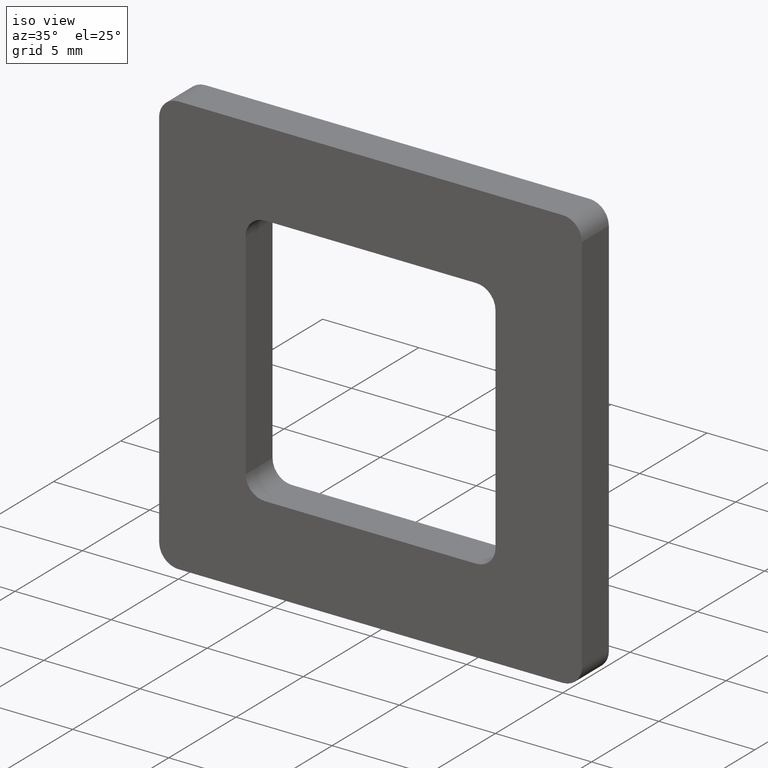
[diagram: clean part render]
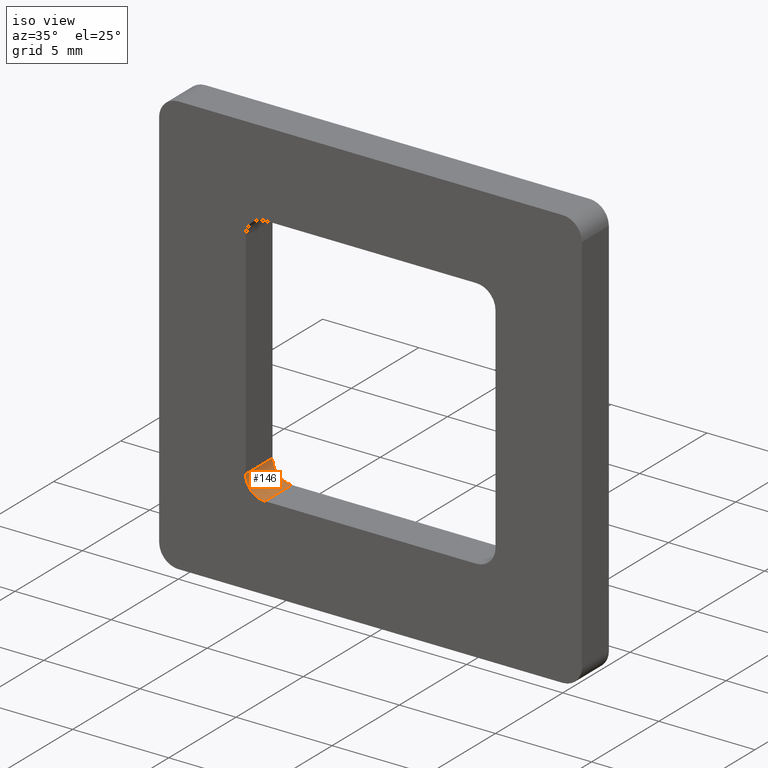
[diagram: same view with one face highlighted and labeled with its STEP entity id]
A machine part, iso view. The second image highlights one B-rep face of the part: STEP entity #146.
In plain terms, the highlighted face is a freeform B-spline surface patch.
Its self-contained STEP definition (entity closure, byte-faithful):
#71=CARTESIAN_POINT('',(-6.500000000000000,0.0,-5.600009918212890));
#72=VERTEX_POINT('',#71);
#78=CARTESIAN_POINT('',(-6.500000000000000,2.0,-5.600009918212890));
#79=VERTEX_POINT('',#78);
#80=CARTESIAN_POINT('',(-6.500000000000000,2.0,-5.600009918212890));
#81=CARTESIAN_POINT('',(-6.500000000000000,0.0,-5.600009918212890));
#82=QUASI_UNIFORM_CURVE('',1,(#80,#81),.UNSPECIFIED.,.F.,.U.);
#83=EDGE_CURVE('',#79,#72,#82,.T.);
#94=CARTESIAN_POINT('',(-5.473823039771332,2.050000000000000,-6.599667242876290));
#95=CARTESIAN_POINT('',(-5.473823039771332,-0.051250000000000,-6.599667242876290));
#96=CARTESIAN_POINT('',(-6.564757576332665,2.050000000000000,-6.628234382105988));
#97=CARTESIAN_POINT('',(-6.564757576332665,-0.051250000000000,-6.628234382105988));
#98=CARTESIAN_POINT('',(-6.498134799149862,2.050000000000000,-5.538961390580671));
#99=CARTESIAN_POINT('',(-6.498134799149862,-0.051250000000000,-5.538961390580671));
#107=(BOUNDED_SURFACE()B_SPLINE_SURFACE(1,2,((#94,#96,#98),(#95,#97,#99)),.UNSPECIFIED.,.F.,.F.,.U.)B_SPLINE_SURFACE_WITH_KNOTS((2,2),(3,3),(0.0,2.101250000000000),(0.0,1.0),.UNSPECIFIED.)GEOMETRIC_REPRESENTATION_ITEM()RATIONAL_B_SPLINE_SURFACE(((1.0,0.675590207615660,1.0),(1.0,0.675590207615660,1.0)))REPRESENTATION_ITEM('')SURFACE());
#108=CARTESIAN_POINT('',(-5.499999988075120,0.0,-6.600009918212890));
#109=VERTEX_POINT('',#108);
#110=CARTESIAN_POINT('',(-6.500000000000000,0.0,-5.600009918212890));
#111=CARTESIAN_POINT('',(-6.500096338761510,0.0,-5.718651224348338));
#112=CARTESIAN_POINT('',(-6.463158444687189,0.0,-5.923113299518286));
#113=CARTESIAN_POINT('',(-6.330525007271611,0.0,-6.174923652096678));
#114=CARTESIAN_POINT('',(-6.154725978316084,0.0,-6.371327140033055));
#115=CARTESIAN_POINT('',(-5.939828485589649,0.0,-6.511142512252079));
#116=CARTESIAN_POINT('',(-5.708618601731380,0.0,-6.585907380689978));
#117=CARTESIAN_POINT('',(-5.565449371299295,0.0,-6.600016945441354));
#118=CARTESIAN_POINT('',(-5.499999988075120,0.0,-6.600009918212890));
#119=B_SPLINE_CURVE_WITH_KNOTS('',3,(#110,#111,#112,#113,#114,#115,#116,#117,#118),.UNSPECIFIED.,.F.,.U.,(4,1,1,1,1,1,4),(0.000000027069838,0.355885849405058,0.613598114550901,0.846757960603233,1.141288465177002,1.374457113769694,1.570806194802052),.UNSPECIFIED.);
#120=EDGE_CURVE('',#72,#109,#119,.T.);
#121=ORIENTED_EDGE('',*,*,#120,.T.);
#122=CARTESIAN_POINT('',(-5.499999988075120,2.0,-6.600009918212890));
#123=VERTEX_POINT('',#122);
#124=CARTESIAN_POINT('',(-5.499999988075120,2.0,-6.600009918212890));
#125=CARTESIAN_POINT('',(-5.499999988075120,0.0,-6.600009918212890));
#126=QUASI_UNIFORM_CURVE('',1,(#124,#125),.UNSPECIFIED.,.F.,.U.);
#127=EDGE_CURVE('',#123,#109,#126,.T.);
#128=ORIENTED_EDGE('',*,*,#127,.F.);
#129=CARTESIAN_POINT('',(-6.500000000000000,2.0,-5.600009918212890));
#130=CARTESIAN_POINT('',(-6.500024327640000,2.000000000000001,-5.685915458413326));
#131=CARTESIAN_POINT('',(-6.481962570234869,1.999999999999999,-5.824981657617534));
#132=CARTESIAN_POINT('',(-6.408594458662311,2.000000000000001,-6.034087905378192));
#133=CARTESIAN_POINT('',(-6.306897566027766,1.999999999999998,-6.203773145822335));
#134=CARTESIAN_POINT('',(-6.177420795221791,2.000000000000004,-6.341415069739232));
#135=CARTESIAN_POINT('',(-6.037779625427416,1.999999999999981,-6.449029047577841));
#136=CARTESIAN_POINT('',(-5.881299544961586,2.000000000000056,-6.531443829641099));
#137=CARTESIAN_POINT('',(-5.692255478139583,1.999999999999900,-6.587515454066765));
#138=CARTESIAN_POINT('',(-5.565449897817175,2.000000000000073,-6.600018307527357));
#139=CARTESIAN_POINT('',(-5.499999988075120,2.0,-6.600009918212890));
#140=B_SPLINE_CURVE_WITH_KNOTS('',3,(#129,#130,#131,#132,#133,#134,#135,#136,#137,#138,#139),.UNSPECIFIED.,.F.,.U.,(4,1,1,1,1,1,1,1,4),(0.000000027069838,0.257710106033720,0.417245790957405,0.662689984083491,0.846757960603233,0.981752192066466,1.190376831780440,1.374457113769694,1.570806194802052),.UNSPECIFIED.);
#141=EDGE_CURVE('',#79,#123,#140,.T.);
#142=ORIENTED_EDGE('',*,*,#141,.F.);
#143=ORIENTED_EDGE('',*,*,#83,.T.);
#144=EDGE_LOOP('',(#121,#128,#142,#143));
#145=FACE_OUTER_BOUND('',#144,.T.);
#146=ADVANCED_FACE('',(#145),#107,.F.);